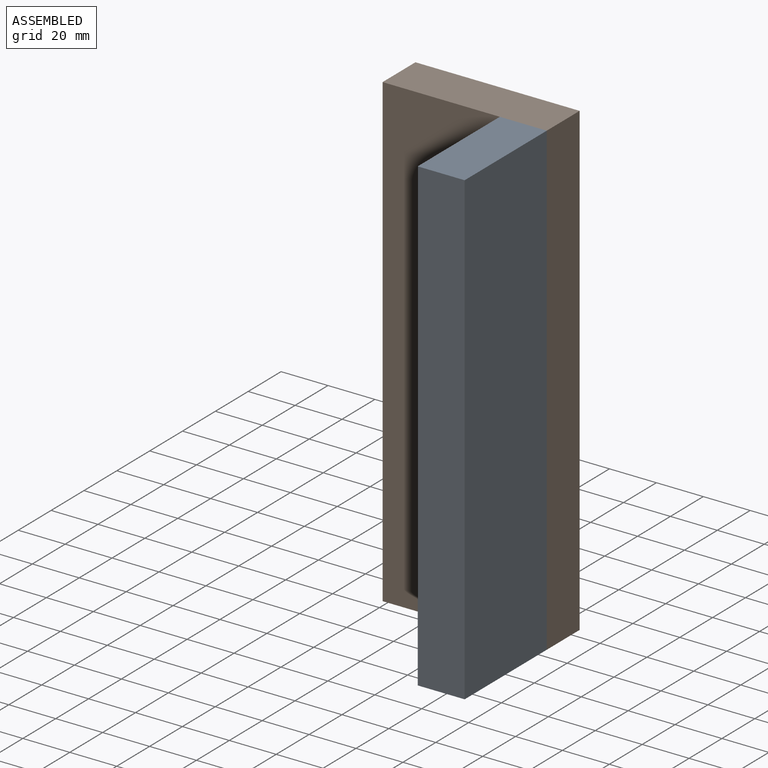
[diagram: assembled view]
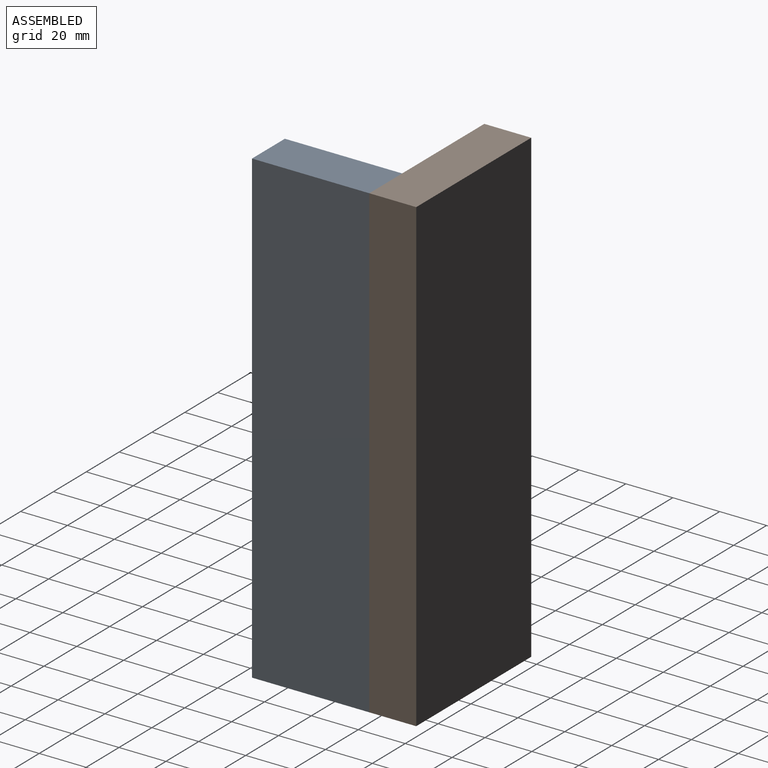
[diagram: assembled view, second angle]
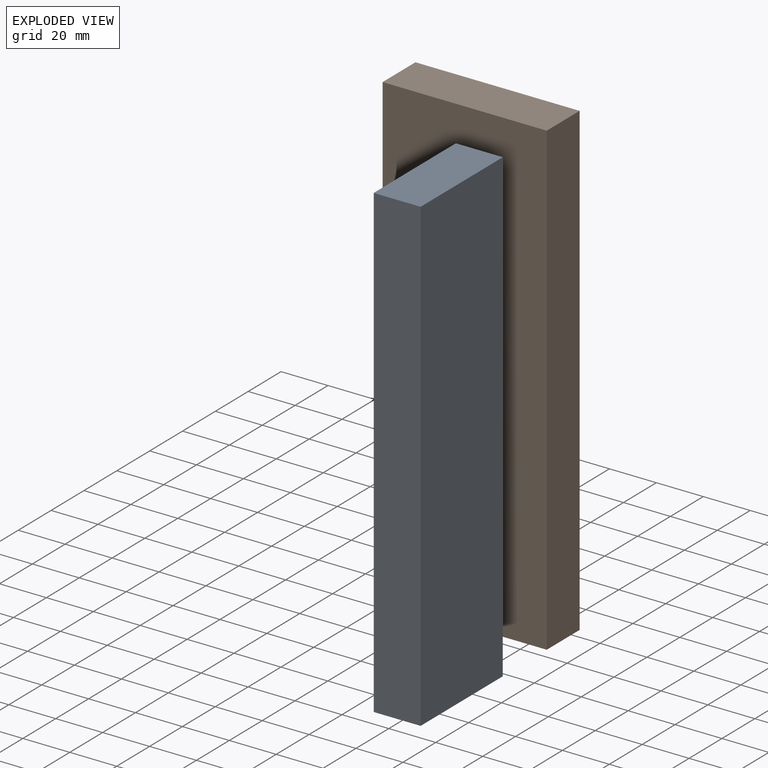
[diagram: exploded view]
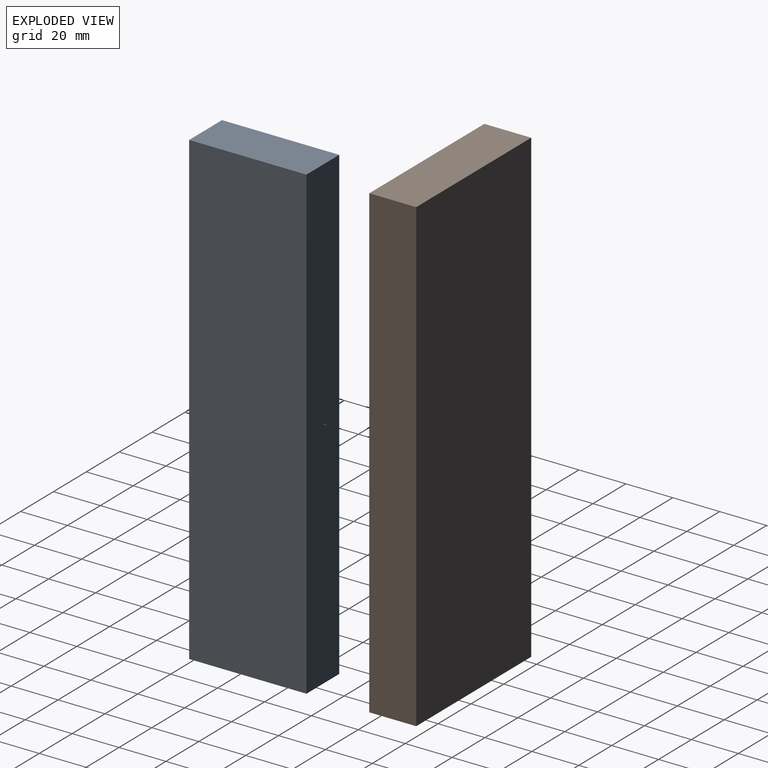
[diagram: exploded view, second angle]
ASSEMBLY  parts=2 mates=4
PART A: 6 faces, bbox 50x20x200 mm
  f0: plane 200x20mm, normal (-1,0,0), area 4000mm2, adj f1,f3,f4,f5
  f1: plane 50x20mm, normal (0,0,-1), area 1000mm2, adj f0,f2,f4,f5
  f2: plane 200x20mm, normal (1,0,0), area 4000mm2, adj f1,f3,f4,f5
  f3: plane 50x20mm, normal (0,0,1), area 1000mm2, adj f0,f2,f4,f5
  f4: plane 200x50mm, normal (0,-1,0), area 10000mm2, adj f0,f1,f2,f3
  f5: plane 200x50mm, normal (0,1,0), area 10000mm2, adj f0,f1,f2,f3
PART B: 6 faces, bbox 70x20x200 mm
  f0: plane 200x20mm, normal (-1,0,0), area 4000mm2, adj f1,f3,f4,f5
  f1: plane 70x20mm, normal (0,0,-1), area 1400mm2, adj f0,f2,f4,f5
  f2: plane 200x20mm, normal (1,0,0), area 4000mm2, adj f1,f3,f4,f5
  f3: plane 70x20mm, normal (0,0,1), area 1400mm2, adj f0,f2,f4,f5
  f4: plane 200x70mm, normal (0,-1,0), area 14000mm2, adj f0,f1,f2,f3
  f5: plane 200x70mm, normal (0,1,0), area 14000mm2, adj f0,f1,f2,f3
PLACE A rot(axis=(0.71,0.71,0),180deg) t=(-28.04,-10.91,228.22)mm
PLACE B t=(-98.04,59.09,28.22)mm
MATE parallel A.f5 <-> B.f2  axis (1,0,0) through (-28.04,14.09,128.22)mm
MATE parallel A.f3 <-> B.f1  axis (0,0,-1) through (-38.04,14.09,28.22)mm
MATE parallel A.f5 <-> B.f2  axis (1,0,0) through (-28.04,14.09,128.22)mm
MATE planar A.f2 <-> B.f4  axis (0,1,0) through (-38.04,39.09,128.22)mm
